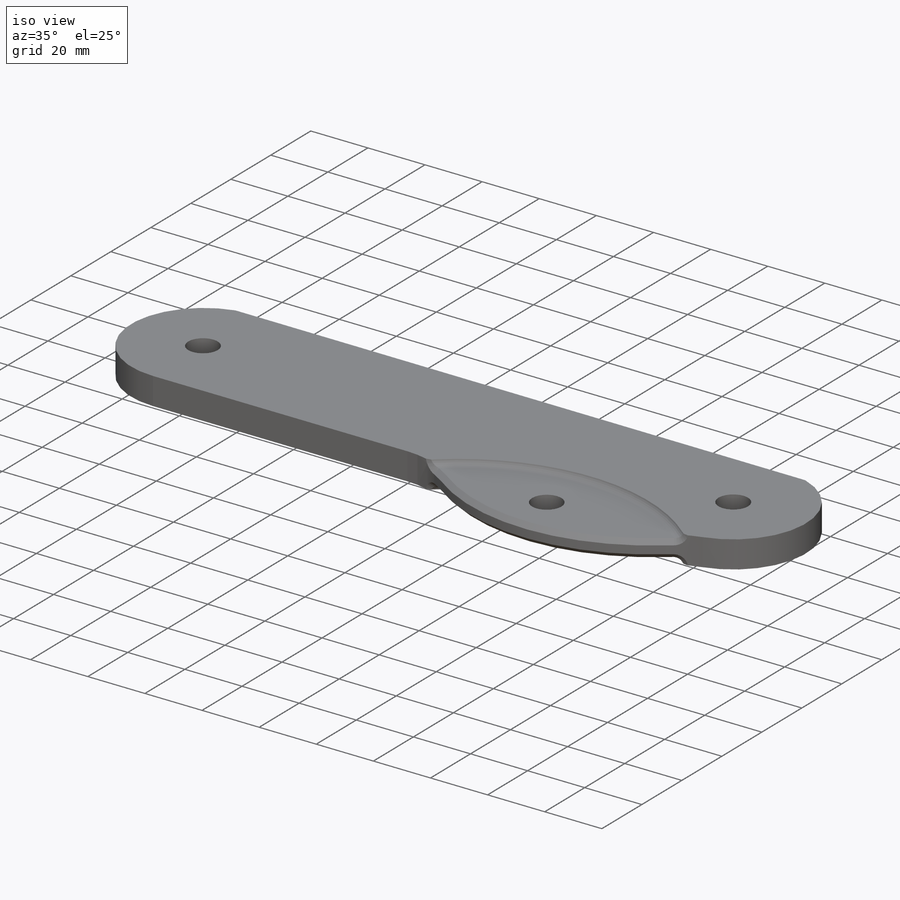
[diagram: iso view]
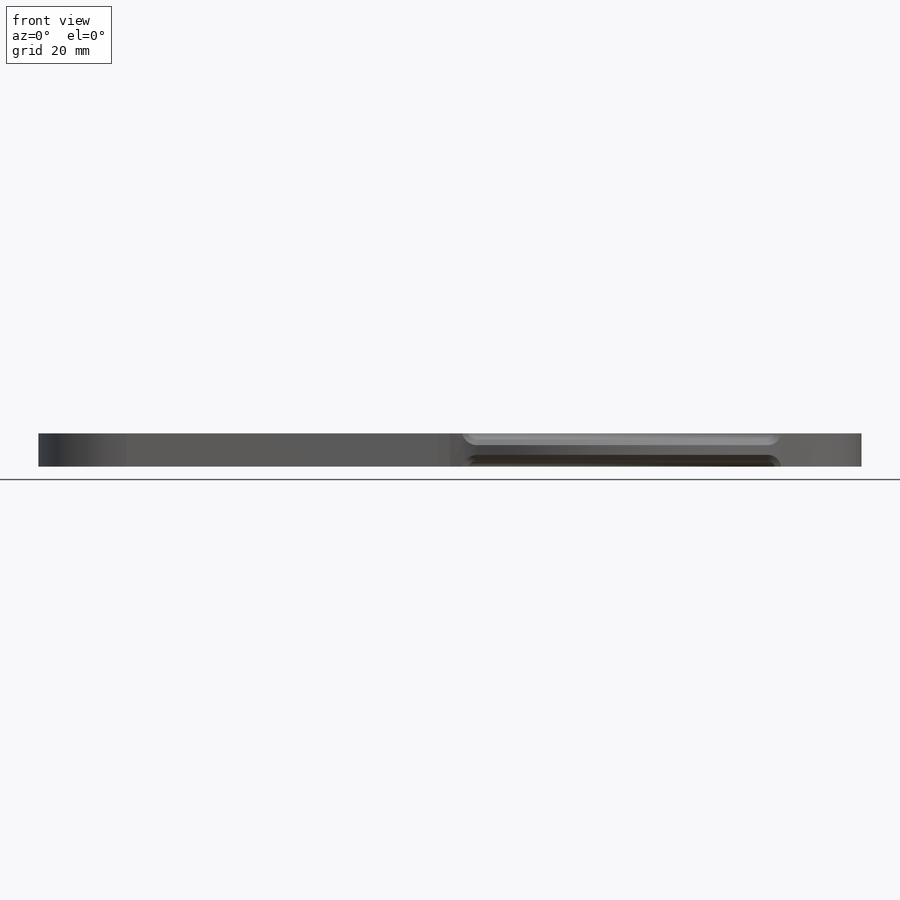
[diagram: front view]
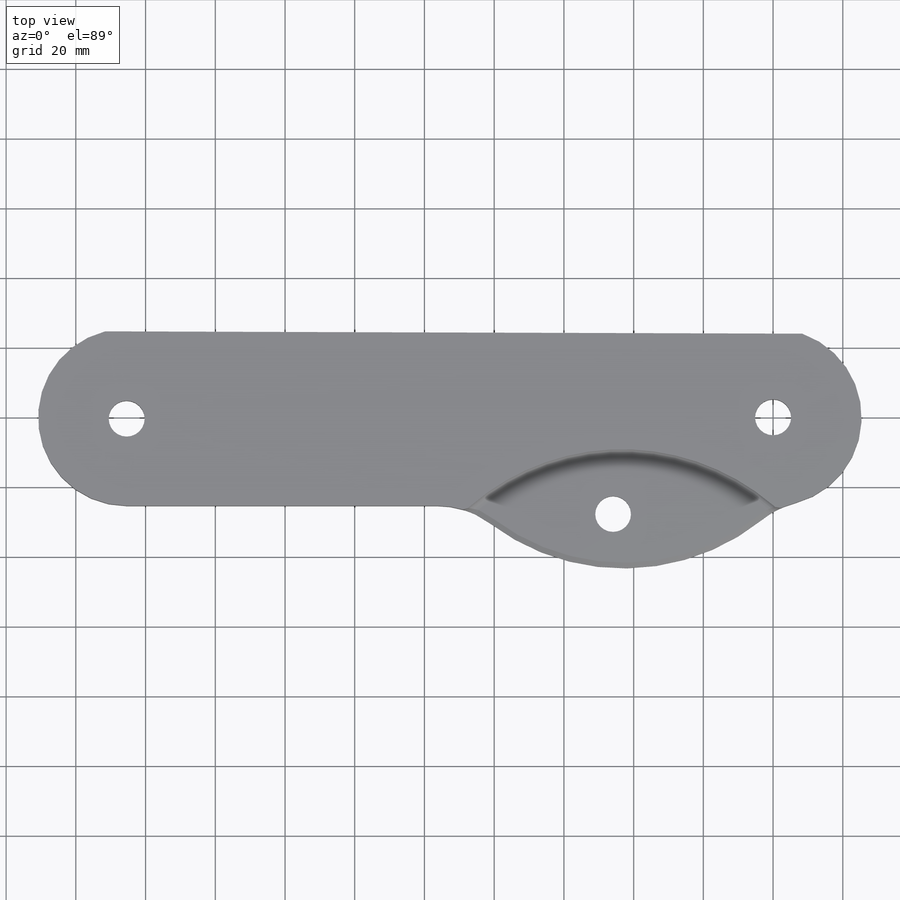
[diagram: top view]
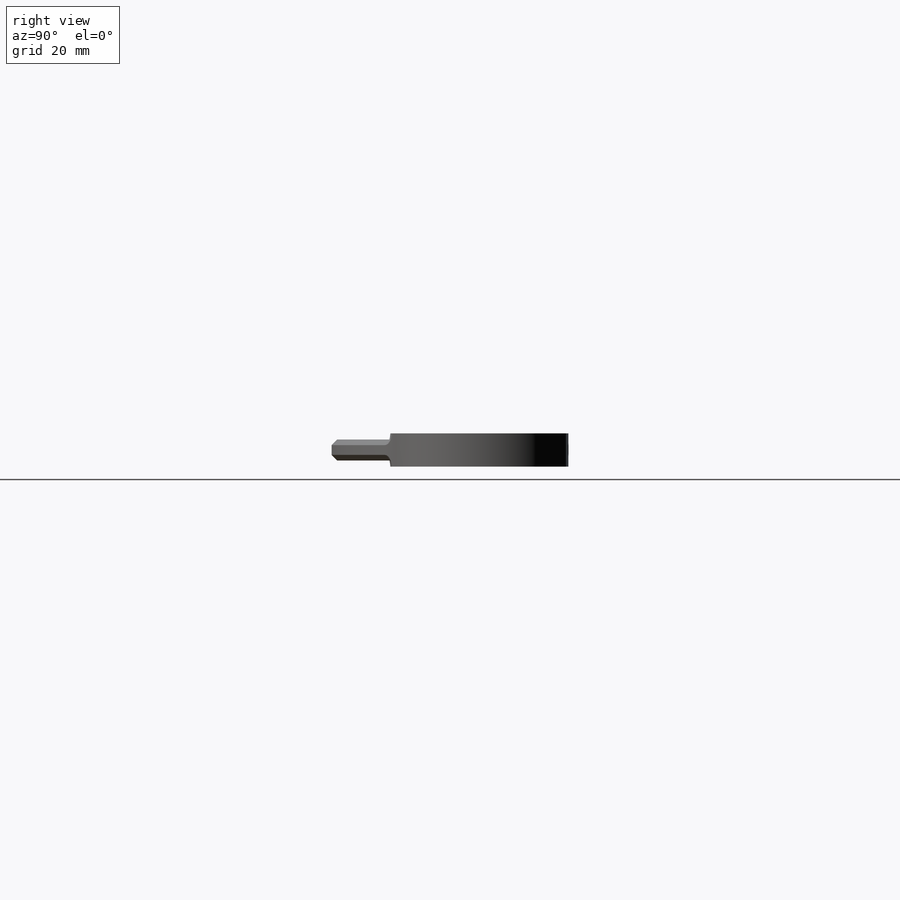
[diagram: right view]
SOLIDWORKS PART (.sldprt)
format: sldprt  version: not decoded by parser v0  size: 354,816 bytes
history: native  units: mm
features: sketch x7, cut_extrude x4, fillet x2, chamfer x2, material x1, extrude x1 (+12 scaffold rows collapsed)
feature tree (29):
  scaffold x12  (default folders/planes/origin — collapsed)
  material  "7075-T6, Plate (SS)"
  sketch  "Sketch1"  dims[c1.D3=38.1mm c1.D4=38.1mm c1.D6=63.5mm c1.D7=50.8mm c1.D8=50.8mm c2.D3=25.4mm c2.D4=25.4mm c2.D9=25.4mm c2.D10=25.4mm c2.D5=185.42mm c2.D1=20.2184mm c2.D2=42.8244mm c3.D1=19.05mm c3.D2=19.05mm]
  extrude  "Boss-Extrude1"  Depth=9.525mm
  sketch  "Sketch7"
  cut_extrude  "Cut-Extrude6"  Depth=1.76276mm
  sketch  "Sketch8"
  cut_extrude  "Cut-Extrude7"  Depth=1.76276mm
  sketch  "Sketch9"
  sketch  "Sketch10"
  sketch  "Sketch11"
  cut_extrude  "Cut-Extrude8"  [1 undecoded]
  sketch  "Sketch12"  dims[D1=~25.208603mm]
  cut_extrude  "Cut-Extrude9"  [1 undecoded]
  fillet  "Fillet1"  Radius=2.54mm
  chamfer  "Chamfer1"  Distance=1.5875mm Angle=45deg
  fillet  "Fillet2"  Radius=2.54mm
  chamfer  "Chamfer2"  Distance=1.5875mm Angle=45deg
decode coverage: 9 of 16 modeling features carry decoded parameters
note: ~ marks probable driven/reference dimensions
note: 2 parameter values undecoded
note: suppression state not decoded; provenance and decode notes live in map.json
